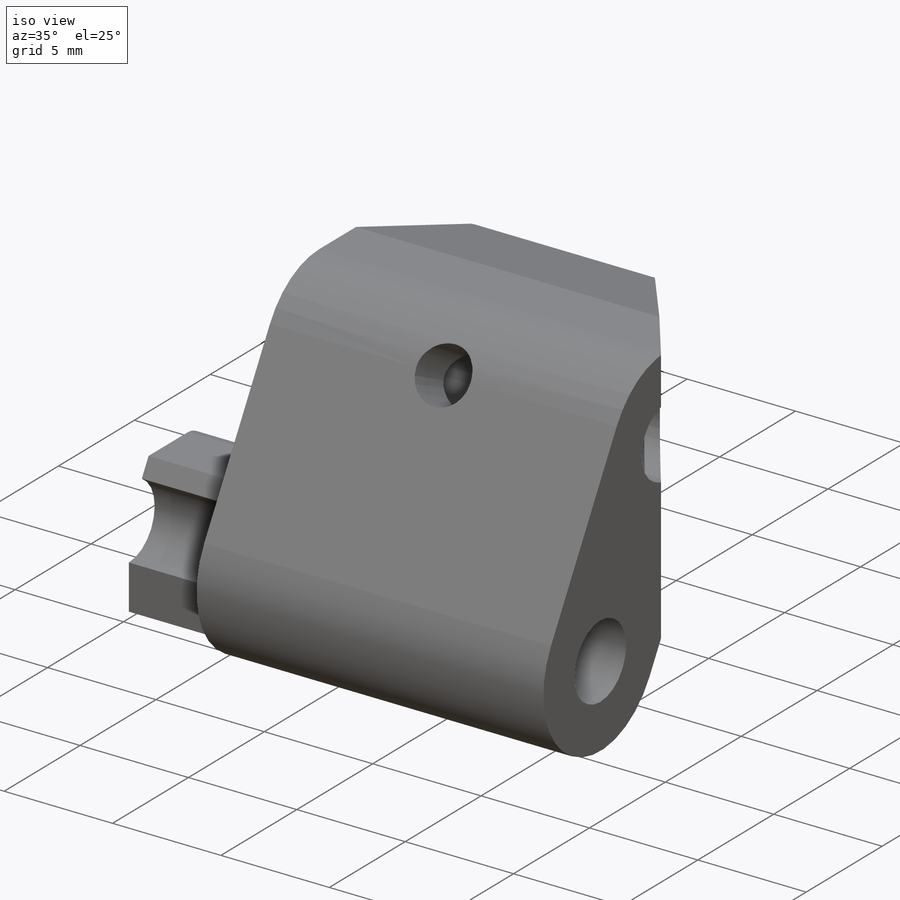
[diagram: iso view]
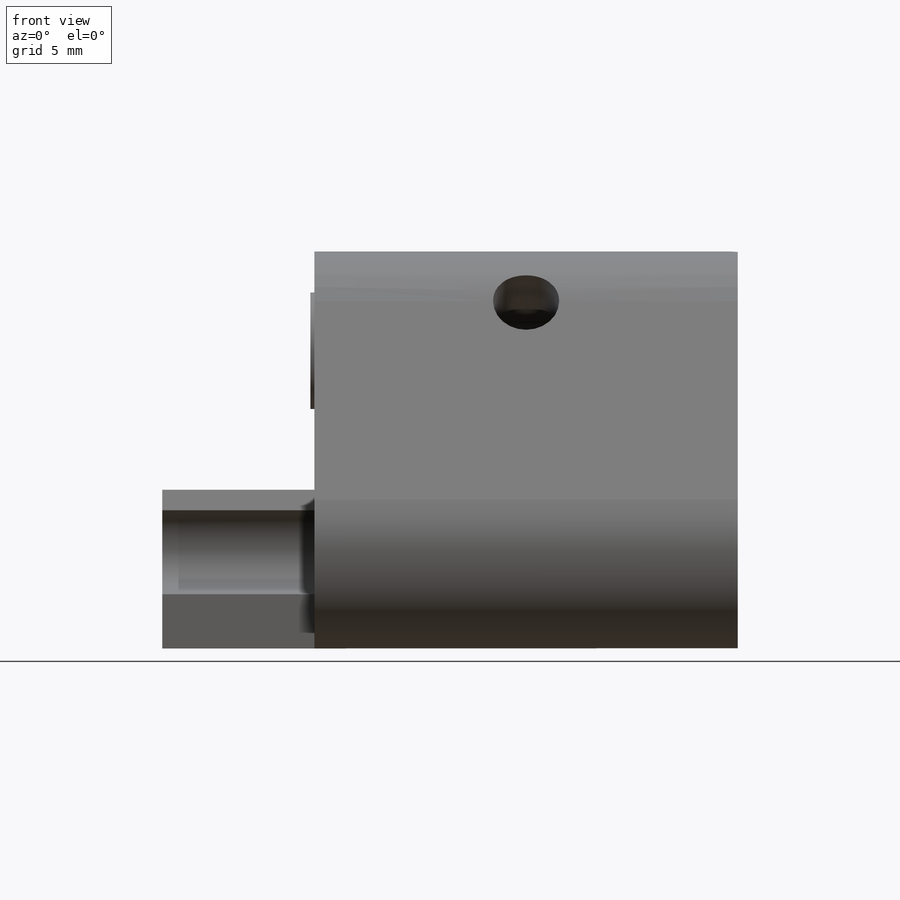
[diagram: front view]
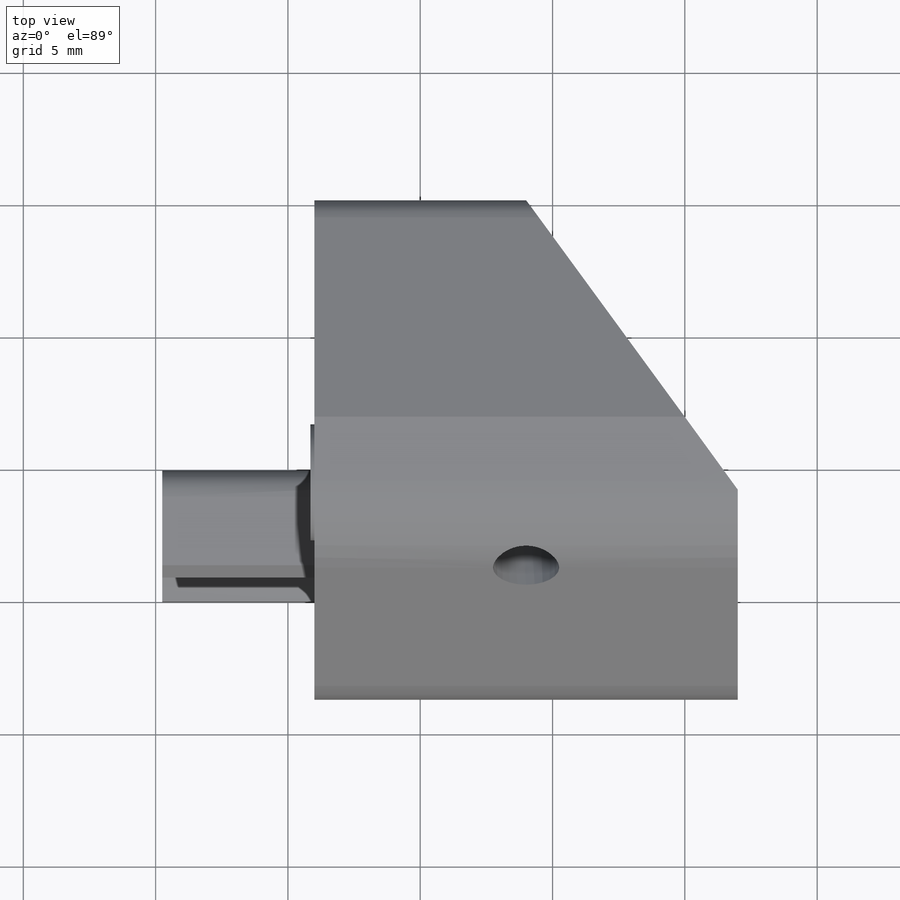
[diagram: top view]
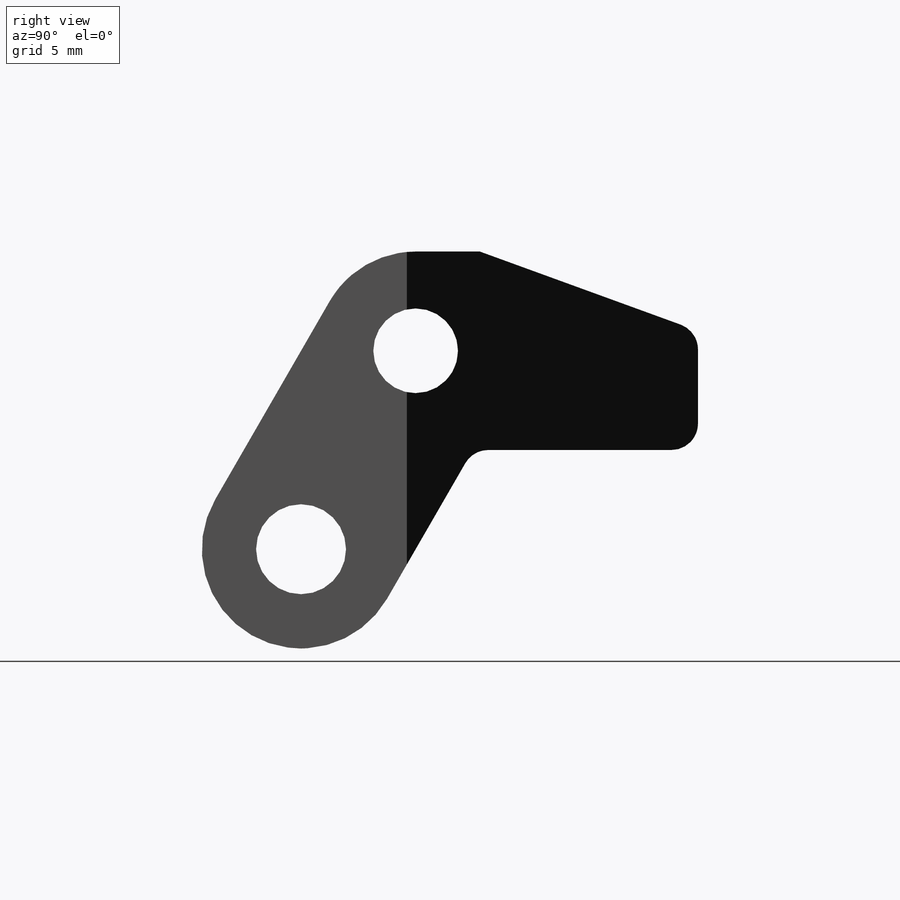
[diagram: right view]
SOLIDWORKS PART (.sldprt)
format: sldprt  version: not decoded by parser v0  size: 332,288 bytes
history: native  units: mm
features: sketch x9, cut_extrude x5, extrude x4, material x1, chamfer x1, fillet x1 (+13 scaffold rows collapsed)
feature tree (34):
  scaffold x13  (default folders/planes/origin — collapsed)
  material  "Material <not specified>"
  sketch  "Sketch1"  dims[c1.D1=3.4mm c1.D6=3.2mm c1.D2=15.0mm c1.D3=7.5mm c1.D4=~5.121251mm c2.D4=60.0deg c2.D5=7.5mm c2.D7=7.5mm]
  extrude  "Boss-Extrude1"  Depth=22mm
  sketch  "Sketch2"  dims[D1=5.25mm]
  cut_extrude  "Cut-Extrude1"  Depth=6mm
  sketch  "Sketch3"  dims[c1.D1=3.0mm c1.D2=6.0mm c1.D3=8.0mm c1.D4=7.5mm c2.D2=3.0mm c2.D3=11.0mm c2.D4=8.0mm c2.D5=1.4mm c3.D3=11.0mm]
  cut_extrude  "Cut-Extrude2"  Depth=5mm
  chamfer  "Chamfer1"  Distance=3mm Angle=70deg
  sketch  "Sketch4"  dims[D1=0.6mm]
  extrude  "Boss-Extrude2"  Depth=0.15mm
  sketch  "Sketch5"
  cut_extrude  "Cut-Extrude3"  Depth=0.25mm
  fillet  "Fillet1"  Radius=1mm
  sketch  "Sketch7"  dims[c1.D1=8.0mm c1.D2=~14.318886mm c2.D2=45.0deg c3.D2=11.0mm]
  cut_extrude  "Cut-Extrude4"  Depth=10mm
  sketch  "Sketch8"  dims[D1=8.0mm]
  extrude  "Boss-Extrude4"  Depth=1mm
  sketch  "Sketch10"  dims[D1=2.5mm]
  cut_extrude  "Cut-Extrude7"  Depth=4mm
  sketch  "Sketch11"
  extrude  "Boss-Extrude5"  Depth=1mm
decode coverage: 18 of 20 modeling features carry decoded parameters
note: ~ marks probable driven/reference dimensions
note: suppression state not decoded; provenance and decode notes live in map.json
